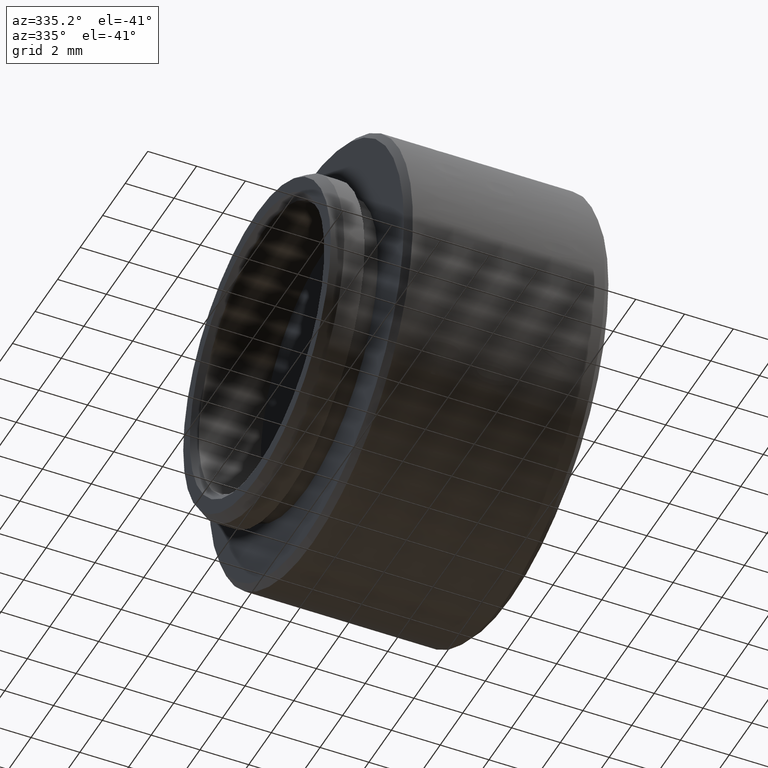
[diagram: clean part render]
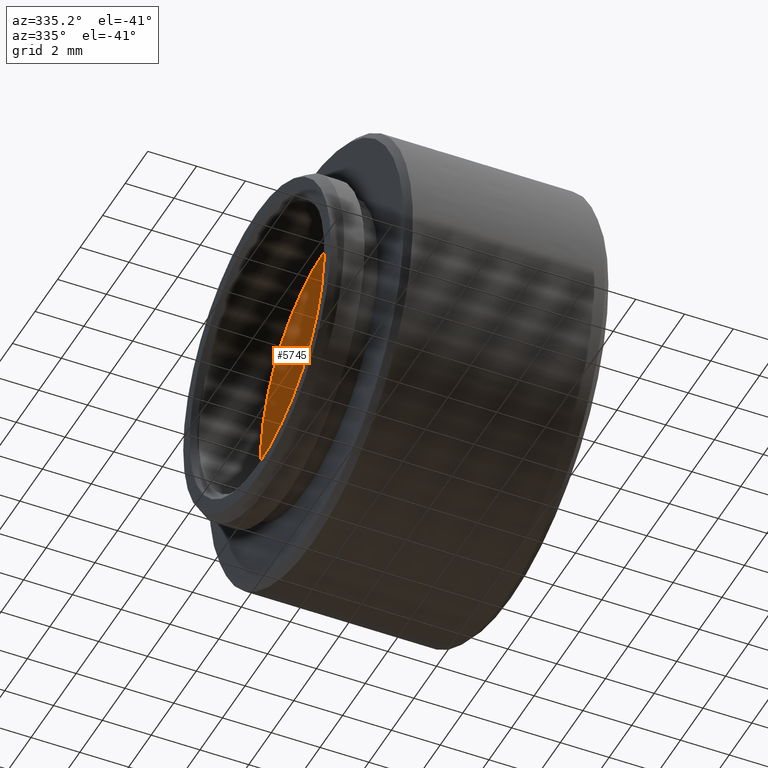
[diagram: same view with one face highlighted and labeled with its STEP entity id]
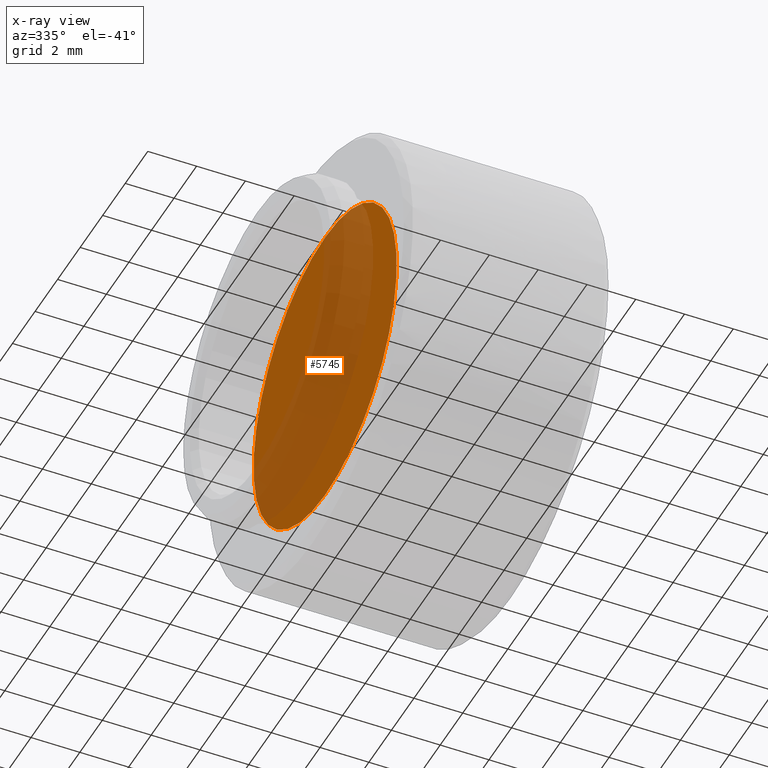
[diagram: x-ray of the same camera — body ghosted, the highlighted face saturated]
A machine part, auxiliary view. The second image highlights one B-rep face of the part: STEP entity #5745.
The next image is the same camera in x-ray: the body ghosted, the highlighted face saturated — about 52% of this face is hidden behind the body in this view.
In plain terms, the highlighted planar face has unit normal (1, 0, 0).
Its self-contained STEP definition (entity closure, byte-faithful):
#875 = AXIS2_PLACEMENT_3D ( 'NONE', #9854, #1572, #11232 ) ;
#1572 = DIRECTION ( 'NONE',  ( 1.000000000000000000, 0.0000000000000000000, 0.0000000000000000000 ) ) ;
#2995 = CIRCLE ( 'NONE', #875, 0.2500000000000000600 ) ;
#3368 = CARTESIAN_POINT ( 'NONE',  ( -0.09499999999999990400, 0.0000000000000000000, 0.0000000000000000000 ) ) ;
#4748 = DIRECTION ( 'NONE',  ( 0.0000000000000000000, -2.220446049250312600E-016, 1.000000000000000000 ) ) ;
#5734 = CARTESIAN_POINT ( 'NONE',  ( -0.09499999999999990400, 2.489498125257398800E-017, -0.2500000000000000000 ) ) ;
#5745 = ADVANCED_FACE ( 'NONE', ( #15433 ), #13003, .F. ) ;
#5976 = CARTESIAN_POINT ( 'NONE',  ( -0.09499999999999990400, -5.551115123125782700E-017, 0.2500000000000000600 ) ) ;
#7481 = DIRECTION ( 'NONE',  ( 1.000000000000000000, 0.0000000000000000000, 0.0000000000000000000 ) ) ;
#7878 = ORIENTED_EDGE ( 'NONE', *, *, #10290, .F. ) ;
#7916 = AXIS2_PLACEMENT_3D ( 'NONE', #3368, #13042, #4748 ) ;
#9498 = CIRCLE ( 'NONE', #7916, 0.2500000000000000600 ) ;
#9699 = EDGE_CURVE ( 'NONE', #9801, #17222, #2995, .T. ) ;
#9801 = VERTEX_POINT ( 'NONE', #5976 ) ;
#9854 = CARTESIAN_POINT ( 'NONE',  ( -0.09499999999999990400, 0.0000000000000000000, 0.0000000000000000000 ) ) ;
#10290 = EDGE_CURVE ( 'NONE', #17222, #9801, #9498, .T. ) ;
#11232 = DIRECTION ( 'NONE',  ( 0.0000000000000000000, -2.220446049250312600E-016, 1.000000000000000000 ) ) ;
#13003 = PLANE ( 'NONE',  #17865 ) ;
#13042 = DIRECTION ( 'NONE',  ( 1.000000000000000000, 0.0000000000000000000, 0.0000000000000000000 ) ) ;
#14384 = CARTESIAN_POINT ( 'NONE',  ( -0.09499999999999990400, -2.025006518275150800E-017, 0.0000000000000000000 ) ) ;
#15178 = EDGE_LOOP ( 'NONE', ( #17374, #7878 ) ) ;
#15433 = FACE_OUTER_BOUND ( 'NONE', #15178, .T. ) ;
#17168 = DIRECTION ( 'NONE',  ( 0.0000000000000000000, -2.220446049250312600E-016, 1.000000000000000000 ) ) ;
#17222 = VERTEX_POINT ( 'NONE', #5734 ) ;
#17374 = ORIENTED_EDGE ( 'NONE', *, *, #9699, .F. ) ;
#17865 = AXIS2_PLACEMENT_3D ( 'NONE', #14384, #7481, #17168 ) ;